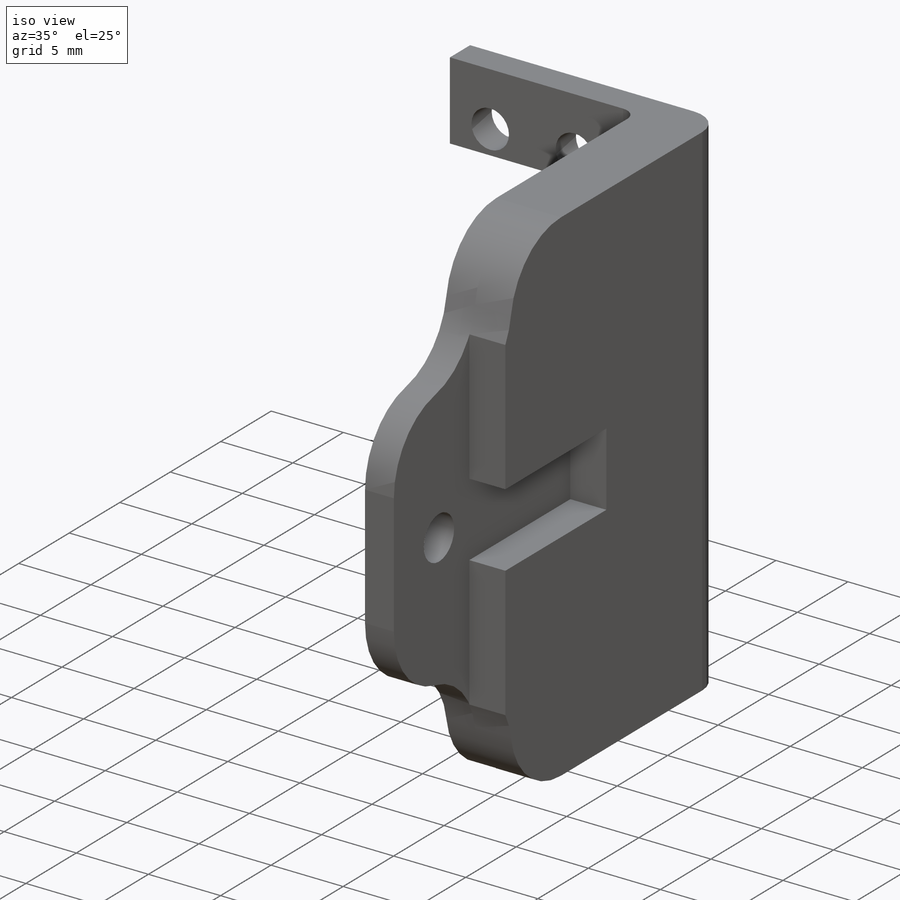
[diagram: iso view]
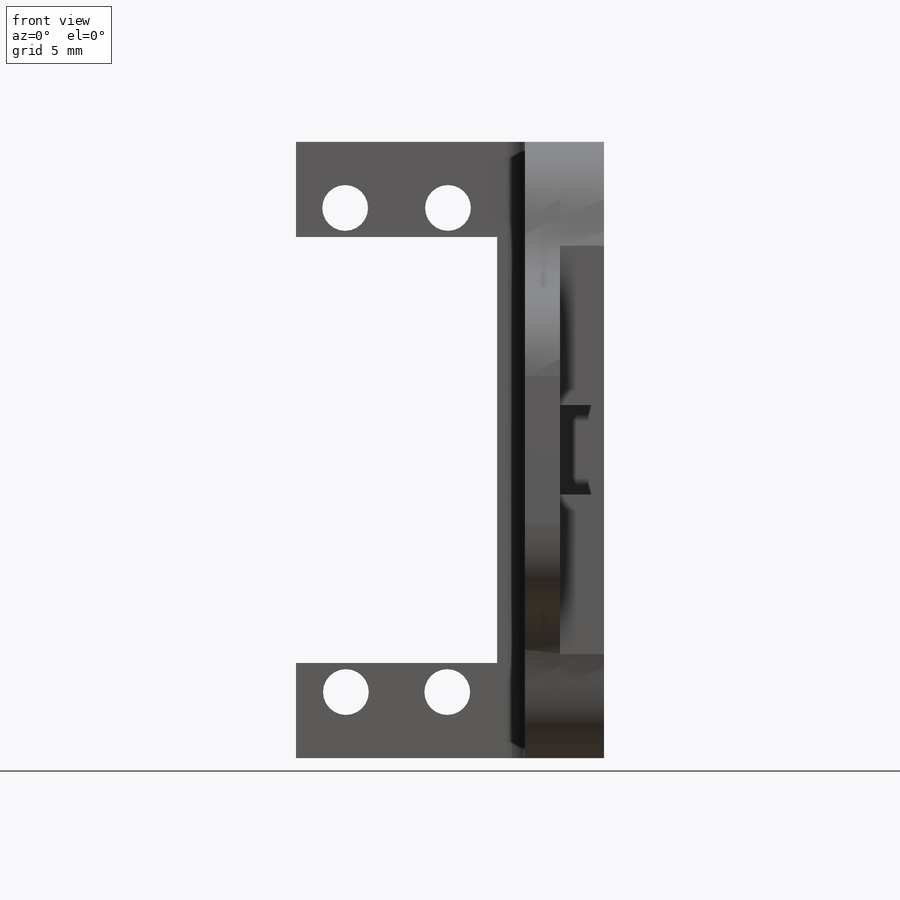
[diagram: front view]
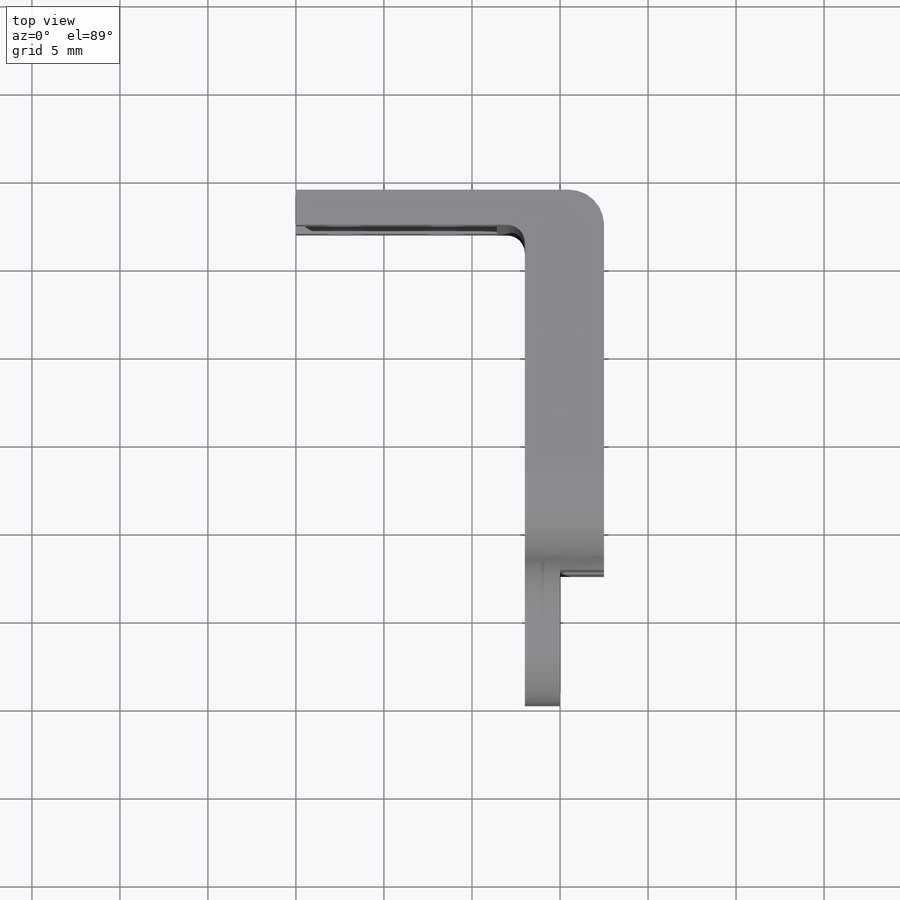
[diagram: top view]
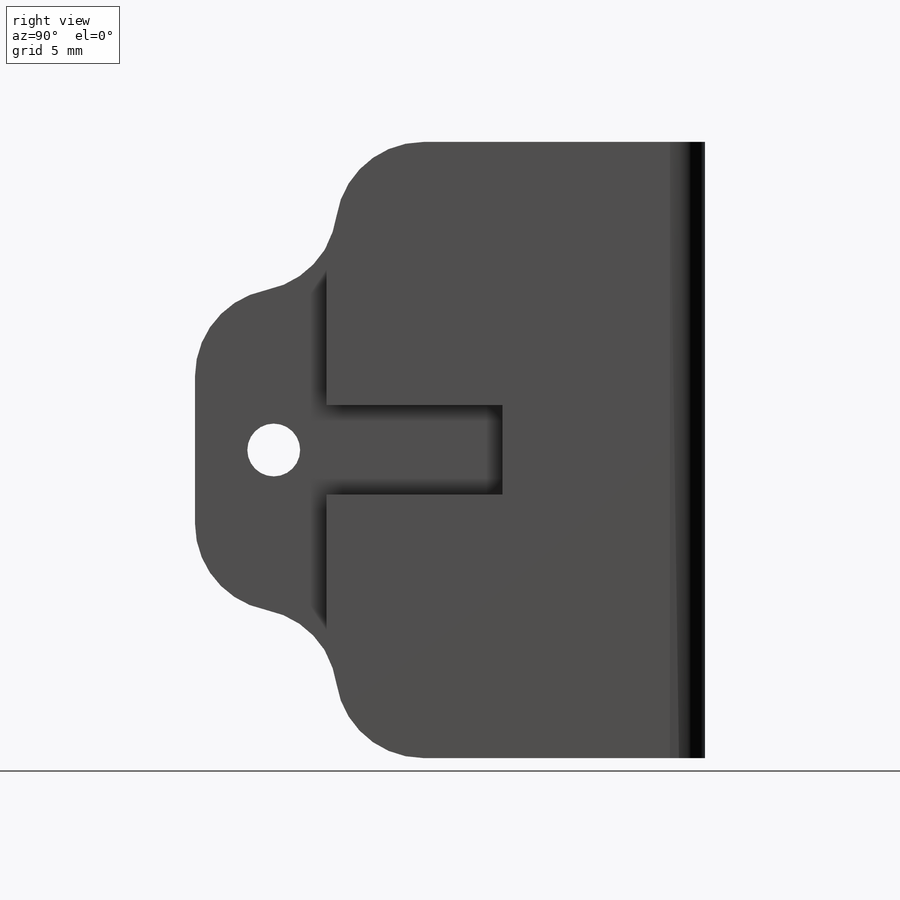
[diagram: right view]
SOLIDWORKS PART (.sldprt)
format: sldprt  version: not decoded by parser v0  size: 277,504 bytes
history: native  units: mm
features: sketch x10, plane x4, extrude x4, cut_extrude x2, hole x2, fillet x2, material x1 (+8 scaffold rows collapsed)
feature tree (33):
  scaffold x8  (default folders/planes/origin — collapsed)
  material  "Matériau <non spécifié>"
  plane  "Plan de face"
  plane  "Plan de dessus"
  plane  "Plan de droite"
  plane  "Plan1"  Offset=17.5mm
  sketch  "Esquisse1"
  extrude  "Boss.-Extru.1"  Depth=2.5mm
  sketch  "Esquisse2"
  extrude  "Boss.-Extru.2"  Depth=16mm
  sketch  "Esquisse3"  dims[c1.D5=5.0mm c1.D6=5.0mm c1.D7=5.0mm c1.D8=5.0mm c1.D9=5.0mm c1.D10=5.0mm c1.D11=5.0mm c1.D12=5.0mm c1.D1=24.0mm c1.D2=0.0mm c1.D3=~8.05657mm c1.D4=~18.179625mm c2.D5=28.0mm c2.D6=~8.359251mm c2.D7=25.0mm c2.D8=~3.11314mm c2.D9=~9.820375mm c2.D10=~9.820375mm c2.D11=8.0mm c2.D12=8.0mm]
  extrude  "Boss.-Extru.3"  Depth=2mm
  sketch  "Esquisse4"  dims[D1=2.0mm]
  extrude  "Boss.-Extru.4"  Depth=13mm
  sketch  "Esquisse5"
  cut_extrude  "Enlèv. mat.-Extru.1"  Depth=2.5mm
  sketch  "Esquisse6"
  cut_extrude  "Enlèv. mat.-Extru.2"  Depth=2mm
  hole  "Diamètre du perçage Ø2.6 (2.6)1"  Diameter=2.6mm Depth=28.974295mm
  sketch  "Esquisse8"
  sketch  "Esquisse7"  dims[hole-wizard template sketch: 59 standard entries collapsed; hole parameters kept: c18.Diamètre du perçage jusqu'au prochain=2.6mm c18.Profondeur du perçage jusqu'au prochain=~28.974295mm]
  hole  "Diamètre du perçage Ø3.0 (3)1"  Diameter=3mm Depth=4.5mm
  sketch  "Esquisse10"
  sketch  "Esquisse9"  dims[hole-wizard template sketch: 60 standard entries collapsed; hole parameters kept: c18.Profondeur du perçage jusqu'au prochain=4.5mm]
  fillet  "Congé1"  Radius=1mm
  fillet  "Congé2"  Radius=2mm
decode coverage: 14 of 20 modeling features carry decoded parameters
note: ~ marks probable driven/reference dimensions
note: suppression state not decoded; provenance and decode notes live in map.json
